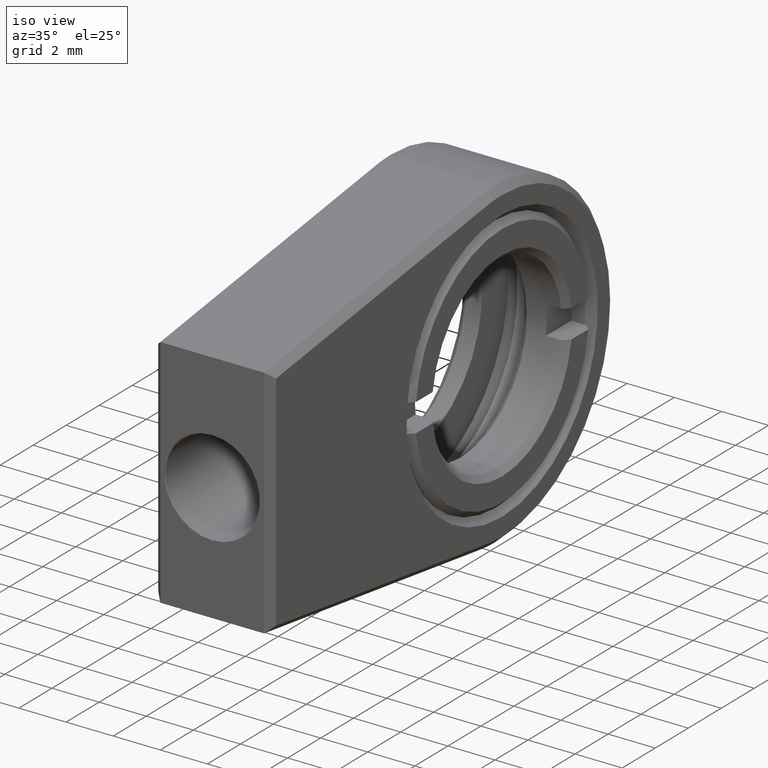
[diagram: clean part render]
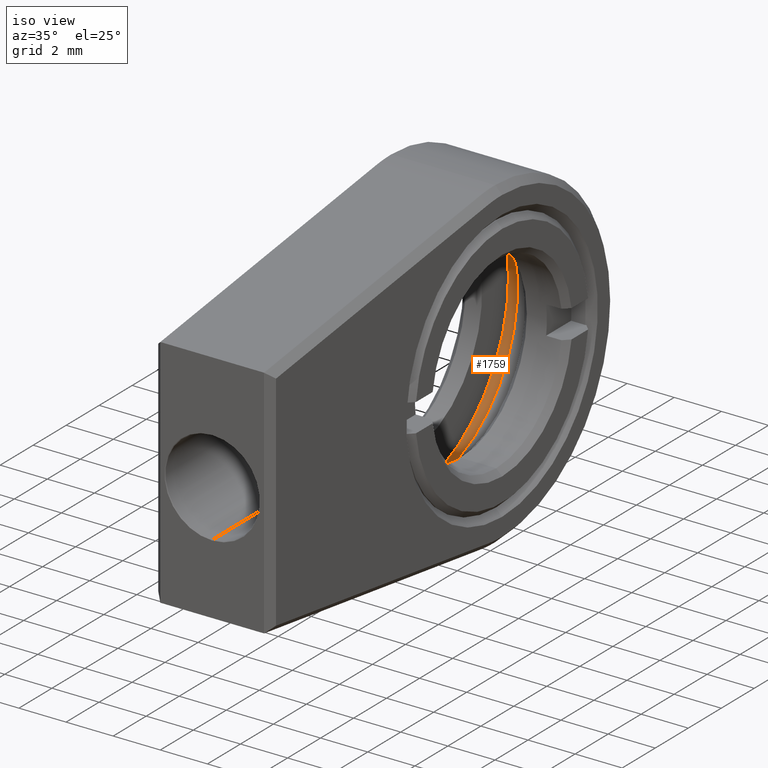
[diagram: same view with one face highlighted and labeled with its STEP entity id]
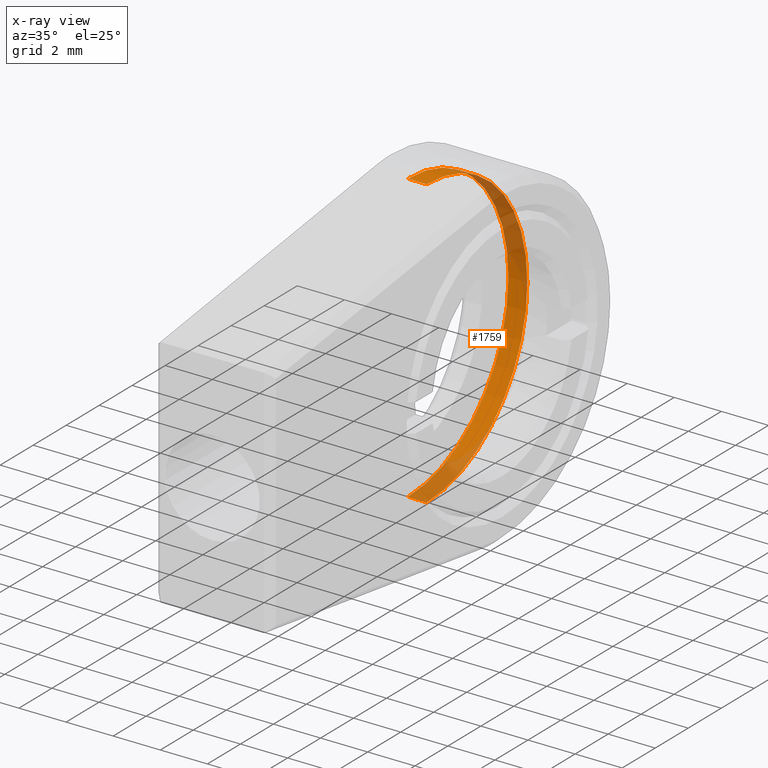
[diagram: x-ray of the same camera — body ghosted, the highlighted face saturated]
A machine part, iso view. The second image highlights one B-rep face of the part: STEP entity #1759.
The next image is the same camera in x-ray: the body ghosted, the highlighted face saturated — about 40% of this face is hidden behind the body in this view.
In plain terms, the highlighted cylindrical surface (partial cylindrical patch) has radius 6.1 mm, axis along (-1, 0, 0).
Its self-contained STEP definition (entity closure, byte-faithful):
#93 = VERTEX_POINT ( 'NONE', #205 ) ;
#170 = VERTEX_POINT ( 'NONE', #1356 ) ;
#186 = AXIS2_PLACEMENT_3D ( 'NONE', #447, #1291, #862 ) ;
#205 = CARTESIAN_POINT ( 'NONE',  ( -0.6999999999999999556, 0.0000000000000000000, 6.099999999999999645 ) ) ;
#288 = VERTEX_POINT ( 'NONE', #707 ) ;
#334 = ORIENTED_EDGE ( 'NONE', *, *, #403, .F. ) ;
#393 = CARTESIAN_POINT ( 'NONE',  ( -0.6999999999999999556, 0.0000000000000000000, 0.0000000000000000000 ) ) ;
#395 = EDGE_CURVE ( 'NONE', #1633, #93, #1328, .T. ) ;
#403 = EDGE_CURVE ( 'NONE', #288, #170, #551, .T. ) ;
#438 = DIRECTION ( 'NONE',  ( 0.0000000000000000000, 0.0000000000000000000, -1.000000000000000000 ) ) ;
#447 = CARTESIAN_POINT ( 'NONE',  ( -0.6999999999999999556, 0.0000000000000000000, 0.0000000000000000000 ) ) ;
#483 = ORIENTED_EDGE ( 'NONE', *, *, #395, .T. ) ;
#551 = CIRCLE ( 'NONE', #1560, 6.099999999999999645 ) ;
#569 = DIRECTION ( 'NONE',  ( -1.000000000000000000, 0.0000000000000000000, 0.0000000000000000000 ) ) ;
#619 = DIRECTION ( 'NONE',  ( -1.000000000000000000, 0.0000000000000000000, 0.0000000000000000000 ) ) ;
#676 = CYLINDRICAL_SURFACE ( 'NONE', #1187, 6.099999999999999645 ) ;
#707 = CARTESIAN_POINT ( 'NONE',  ( -1.500000000000000000, 7.470345474798854293E-16, -6.099999999999999645 ) ) ;
#715 = DIRECTION ( 'NONE',  ( 1.000000000000000000, 0.0000000000000000000, 0.0000000000000000000 ) ) ;
#769 = EDGE_CURVE ( 'NONE', #1633, #288, #1023, .T. ) ;
#821 = DIRECTION ( 'NONE',  ( 0.0000000000000000000, 0.0000000000000000000, 1.000000000000000000 ) ) ;
#862 = DIRECTION ( 'NONE',  ( 0.0000000000000000000, 0.0000000000000000000, -1.000000000000000000 ) ) ;
#978 = EDGE_CURVE ( 'NONE', #93, #170, #1062, .T. ) ;
#986 = VECTOR ( 'NONE', #569, 1000.000000000000000 ) ;
#987 = VECTOR ( 'NONE', #619, 1000.000000000000000 ) ;
#1023 = LINE ( 'NONE', #1140, #986 ) ;
#1025 = CARTESIAN_POINT ( 'NONE',  ( -1.500000000000000000, 0.0000000000000000000, 0.0000000000000000000 ) ) ;
#1050 = CARTESIAN_POINT ( 'NONE',  ( -0.6999999999999999556, 0.0000000000000000000, 6.099999999999999645 ) ) ;
#1062 = LINE ( 'NONE', #1050, #987 ) ;
#1096 = FACE_OUTER_BOUND ( 'NONE', #1447, .T. ) ;
#1103 = ORIENTED_EDGE ( 'NONE', *, *, #978, .T. ) ;
#1140 = CARTESIAN_POINT ( 'NONE',  ( -0.6999999999999999556, 7.470345474798854293E-16, -6.099999999999999645 ) ) ;
#1187 = AXIS2_PLACEMENT_3D ( 'NONE', #393, #1237, #821 ) ;
#1208 = ORIENTED_EDGE ( 'NONE', *, *, #769, .F. ) ;
#1237 = DIRECTION ( 'NONE',  ( -1.000000000000000000, 0.0000000000000000000, 0.0000000000000000000 ) ) ;
#1291 = DIRECTION ( 'NONE',  ( 1.000000000000000000, 0.0000000000000000000, 0.0000000000000000000 ) ) ;
#1328 = CIRCLE ( 'NONE', #186, 6.099999999999999645 ) ;
#1356 = CARTESIAN_POINT ( 'NONE',  ( -1.500000000000000000, 0.0000000000000000000, 6.099999999999999645 ) ) ;
#1447 = EDGE_LOOP ( 'NONE', ( #1208, #483, #1103, #334 ) ) ;
#1560 = AXIS2_PLACEMENT_3D ( 'NONE', #1025, #715, #438 ) ;
#1575 = CARTESIAN_POINT ( 'NONE',  ( -0.6999999999999999556, 7.470345474798854293E-16, -6.099999999999999645 ) ) ;
#1633 = VERTEX_POINT ( 'NONE', #1575 ) ;
#1759 = ADVANCED_FACE ( 'NONE', ( #1096 ), #676, .F. ) ;